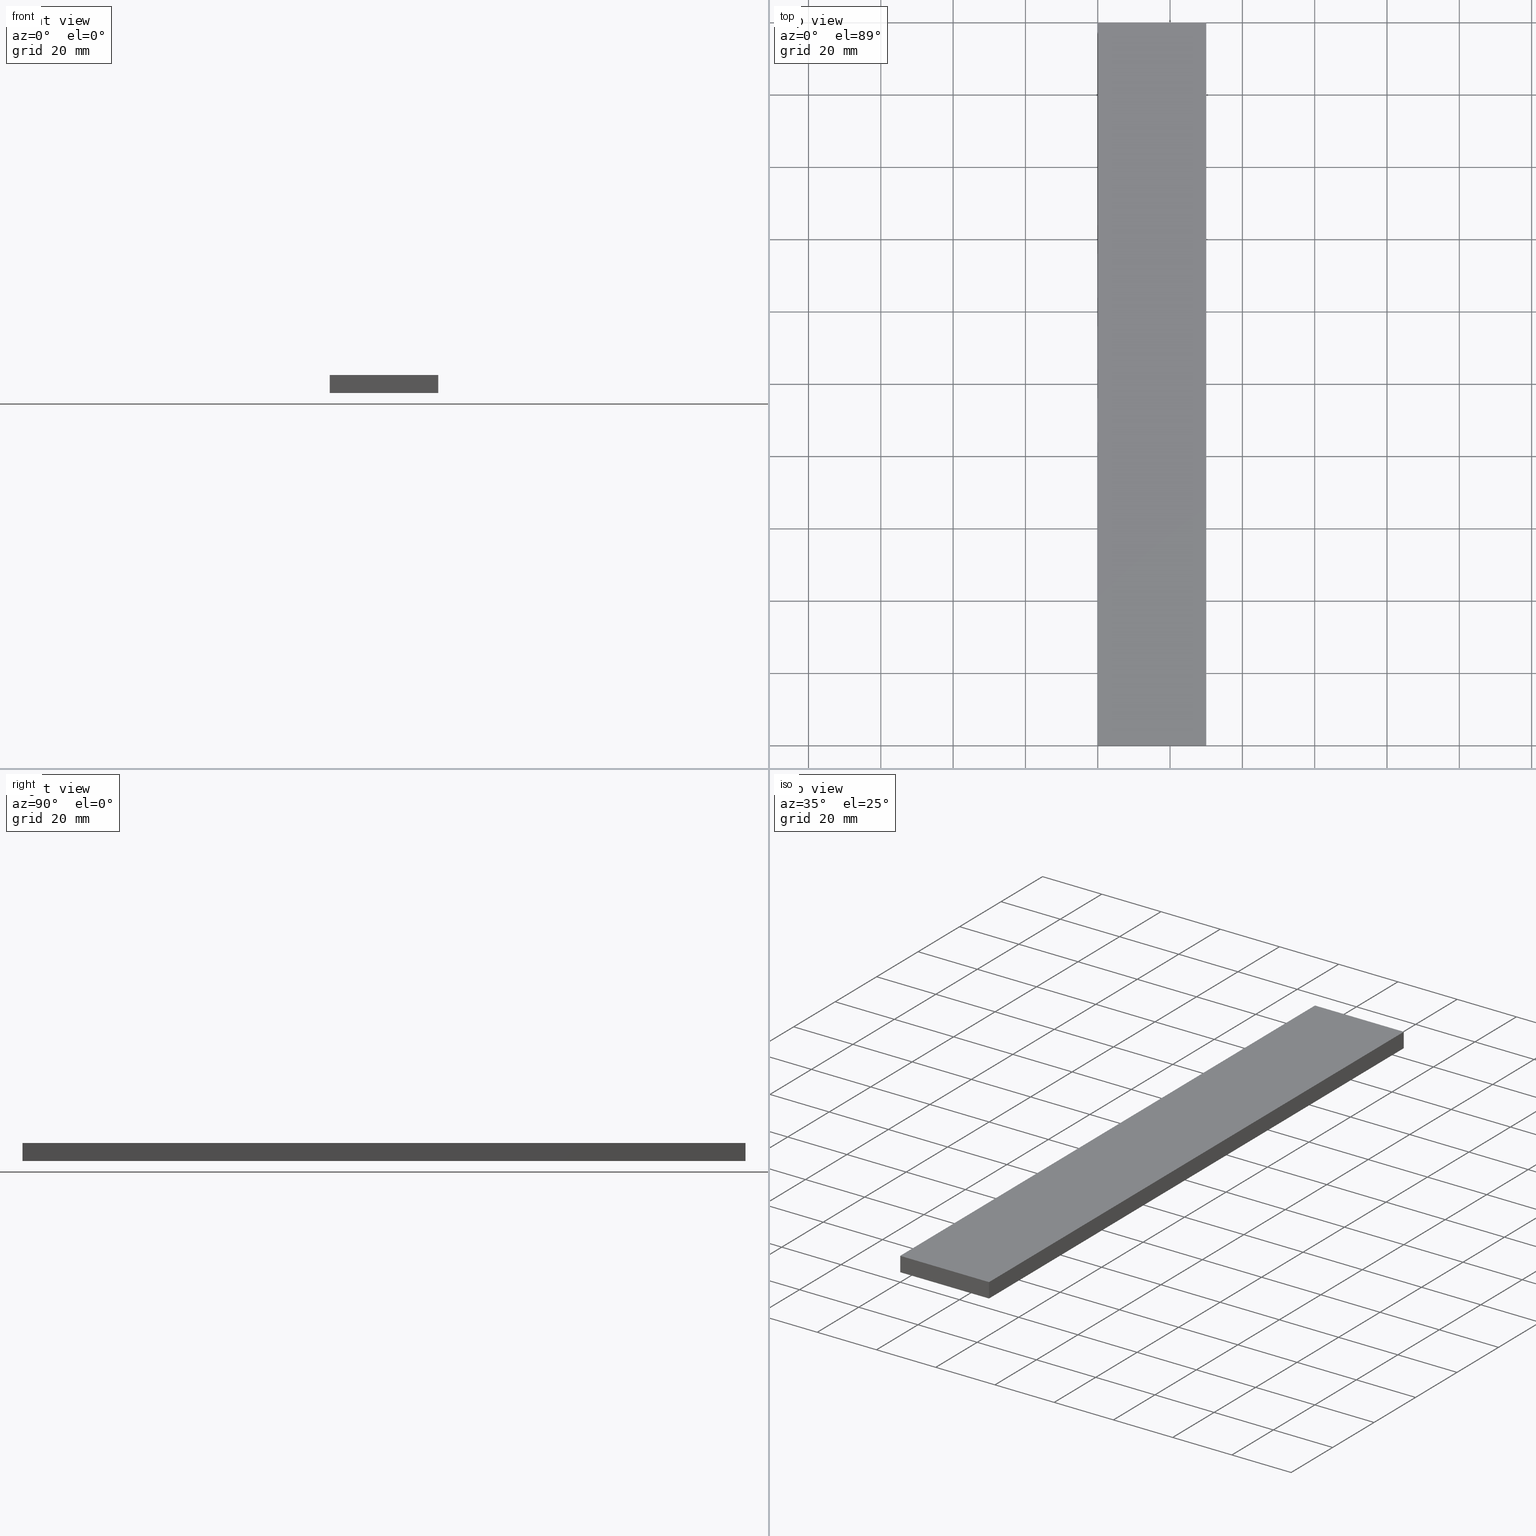
[diagram: canonical four-view strip — front | top / right | iso, engineering-drawing reading convention]
A machine part, canonical four-view strip (front | top / right | iso — engineering-drawing reading convention). The complete STEP part file that produces these views, byte-faithful:
ISO-10303-21;
HEADER;
FILE_DESCRIPTION (( 'STEP AP214' ),
    '1' );
FILE_NAME ('TM_340W_6.STEP',
    '2016-05-09T07:26:00',
    ( '' ),
    ( '' ),
    'SwSTEP 2.0',
    'SolidWorks 2015',
    '' );
FILE_SCHEMA (( 'AUTOMOTIVE_DESIGN' ));
ENDSEC;

DATA;
#1 = ORIENTED_EDGE ( 'NONE', *, *, #225, .F. ) ;
#2 = PRODUCT_DEFINITION_CONTEXT ( 'detailed design', #185, 'design' ) ;
#3 = STYLED_ITEM ( 'NONE', ( #115 ), #7 ) ;
#4 = PRODUCT_DEFINITION_FORMATION_WITH_SPECIFIED_SOURCE ( 'ANY', '', #224, .NOT_KNOWN. ) ;
#5 = FACE_OUTER_BOUND ( 'NONE', #52, .T. ) ;
#6 = PLANE ( 'NONE',  #42 ) ;
#7 = MANIFOLD_SOLID_BREP ( '���߰�1', #59 ) ;
#8 =( NAMED_UNIT ( * ) PLANE_ANGLE_UNIT ( ) SI_UNIT ( $, .RADIAN. ) );
#9 = APPLICATION_PROTOCOL_DEFINITION ( 'draft international standard', 'automotive_design', 1998, #185 ) ;
#10 =( LENGTH_UNIT ( ) NAMED_UNIT ( * ) SI_UNIT ( .MILLI., .METRE. ) );
#11 = ADVANCED_FACE ( 'NONE', ( #5 ), #6, .T. ) ;
#12 = DIRECTION ( 'NONE',  ( 0.0000000000000000000, 0.0000000000000000000, 1.000000000000000000 ) ) ;
#13 = FACE_OUTER_BOUND ( 'NONE', #220, .T. ) ;
#14 = AXIS2_PLACEMENT_3D ( 'NONE', #117, #85, #80 ) ;
#15 = PLANE ( 'NONE',  #78 ) ;
#16 = CONTEXT_DEPENDENT_SHAPE_REPRESENTATION ( #134, #146 ) ;
#17 = CARTESIAN_POINT ( 'NONE',  ( 30.00000000000000000, 0.0000000000000000000, 5.000000000000000000 ) ) ;
#18 = APPLICATION_CONTEXT ( 'automotive_design' ) ;
#19 = LINE ( 'NONE', #206, #138 ) ;
#20 = LINE ( 'NONE', #64, #200 ) ;
#21 = ORIENTED_EDGE ( 'NONE', *, *, #230, .F. ) ;
#22 = CARTESIAN_POINT ( 'NONE',  ( 0.0000000000000000000, 1000.000000000000000, 5.000000000000000000 ) ) ;
#23 = ADVANCED_FACE ( 'NONE', ( #98 ), #204, .F. ) ;
#24 = PRODUCT_DEFINITION ( 'UNKNOWN', '', #4, #44 ) ;
#25 = SURFACE_STYLE_FILL_AREA ( #143 ) ;
#26 = DIRECTION ( 'NONE',  ( 0.0000000000000000000, -1.000000000000000000, 0.0000000000000000000 ) ) ;
#27 = ORIENTED_EDGE ( 'NONE', *, *, #127, .F. ) ;
#28 =( NAMED_UNIT ( * ) SI_UNIT ( $, .STERADIAN. ) SOLID_ANGLE_UNIT ( ) );
#29 = PRODUCT_RELATED_PRODUCT_CATEGORY ( 'part', '', ( #224 ) ) ;
#30 = ORIENTED_EDGE ( 'NONE', *, *, #99, .T. ) ;
#31 = AXIS2_PLACEMENT_3D ( 'NONE', #114, #83, #232 ) ;
#32 = ORIENTED_EDGE ( 'NONE', *, *, #155, .F. ) ;
#33 = VERTEX_POINT ( 'NONE', #50 ) ;
#34 = ORIENTED_EDGE ( 'NONE', *, *, #176, .F. ) ;
#35 = FILL_AREA_STYLE ('',( #96 ) ) ;
#36 = VERTEX_POINT ( 'NONE', #60 ) ;
#37 = PLANE ( 'NONE',  #103 ) ;
#38 = ORIENTED_EDGE ( 'NONE', *, *, #155, .T. ) ;
#39 = AXIS2_PLACEMENT_3D ( 'NONE', #75, #151, #191 ) ;
#40 =( LENGTH_UNIT ( ) NAMED_UNIT ( * ) SI_UNIT ( .MILLI., .METRE. ) );
#41 = PRODUCT_RELATED_PRODUCT_CATEGORY ( 'part', '', ( #201 ) ) ;
#42 = AXIS2_PLACEMENT_3D ( 'NONE', #107, #160, #68 ) ;
#43 = CARTESIAN_POINT ( 'NONE',  ( 0.0000000000000000000, 200.0000000000000000, 5.000000000000000000 ) ) ;
#44 = PRODUCT_DEFINITION_CONTEXT ( 'detailed design', #198, 'design' ) ;
#45 = CARTESIAN_POINT ( 'NONE',  ( 0.0000000000000000000, 0.0000000000000000000, 0.0000000000000000000 ) ) ;
#46 = ADVANCED_FACE ( 'NONE', ( #228 ), #15, .F. ) ;
#47 = DIRECTION ( 'NONE',  ( 0.0000000000000000000, 0.0000000000000000000, 1.000000000000000000 ) ) ;
#48 = ORIENTED_EDGE ( 'NONE', *, *, #168, .F. ) ;
#49 = DIRECTION ( 'NONE',  ( 1.000000000000000000, 0.0000000000000000000, 0.0000000000000000000 ) ) ;
#50 = CARTESIAN_POINT ( 'NONE',  ( 30.00000000000000000, 200.0000000000000000, 0.0000000000000000000 ) ) ;
#51 = EDGE_CURVE ( 'NONE', #110, #36, #94, .T. ) ;
#52 = EDGE_LOOP ( 'NONE', ( #30, #74, #147, #56 ) ) ;
#53 = EDGE_CURVE ( 'NONE', #231, #110, #149, .T. ) ;
#54 = LINE ( 'NONE', #17, #166 ) ;
#55 = PLANE ( 'NONE',  #216 ) ;
#56 = ORIENTED_EDGE ( 'NONE', *, *, #230, .T. ) ;
#57 = DIRECTION ( 'NONE',  ( -1.000000000000000000, 0.0000000000000000000, 0.0000000000000000000 ) ) ;
#58 = SURFACE_STYLE_FILL_AREA ( #35 ) ;
#59 = CLOSED_SHELL ( 'NONE', ( #23, #169, #46, #199, #11, #104 ) ) ;
#60 = CARTESIAN_POINT ( 'NONE',  ( 30.00000000000000000, 0.0000000000000000000, 5.000000000000000000 ) ) ;
#61 = ORIENTED_EDGE ( 'NONE', *, *, #116, .T. ) ;
#62 = CARTESIAN_POINT ( 'NONE',  ( 0.0000000000000000000, 0.0000000000000000000, 5.000000000000000000 ) ) ;
#63 = AXIS2_PLACEMENT_3D ( 'NONE', #79, #47, #91 ) ;
#64 = CARTESIAN_POINT ( 'NONE',  ( 30.00000000000000000, 0.0000000000000000000, 0.0000000000000000000 ) ) ;
#65 = PRODUCT_DEFINITION_SHAPE ( 'NONE', 'NONE',  #24 ) ;
#66 = CARTESIAN_POINT ( 'NONE',  ( 0.0000000000000000000, 0.0000000000000000000, 0.0000000000000000000 ) ) ;
#67 = LINE ( 'NONE', #62, #209 ) ;
#68 = DIRECTION ( 'NONE',  ( 1.000000000000000000, 0.0000000000000000000, 0.0000000000000000000 ) ) ;
#69 = VERTEX_POINT ( 'NONE', #105 ) ;
#70 = ORIENTED_EDGE ( 'NONE', *, *, #116, .F. ) ;
#71 = VECTOR ( 'NONE', #222, 1000.000000000000000 ) ;
#72 = UNCERTAINTY_MEASURE_WITH_UNIT (LENGTH_MEASURE( 1.000000000000000100E-005 ), #10, 'distance_accuracy_value', 'NONE');
#73 = ORIENTED_EDGE ( 'NONE', *, *, #99, .F. ) ;
#74 = ORIENTED_EDGE ( 'NONE', *, *, #53, .T. ) ;
#75 = CARTESIAN_POINT ( 'NONE',  ( 0.0000000000000000000, 1000.000000000000000, 0.0000000000000000000 ) ) ;
#76 = VECTOR ( 'NONE', #215, 1000.000000000000000 ) ;
#77 = ORIENTED_EDGE ( 'NONE', *, *, #51, .F. ) ;
#78 = AXIS2_PLACEMENT_3D ( 'NONE', #178, #238, #12 ) ;
#79 = CARTESIAN_POINT ( 'NONE',  ( 0.0000000000000000000, 0.0000000000000000000, 0.0000000000000000000 ) ) ;
#80 = DIRECTION ( 'NONE',  ( 1.000000000000000000, 0.0000000000000000000, 0.0000000000000000000 ) ) ;
#81 = SHAPE_REPRESENTATION_RELATIONSHIP ( 'NONE' , 'NONE' ,  #187, #170 ) ;
#82 = SURFACE_STYLE_USAGE ( .BOTH. , #167 ) ;
#83 = DIRECTION ( 'NONE',  ( 0.0000000000000000000, 0.0000000000000000000, 1.000000000000000000 ) ) ;
#84 = DIRECTION ( 'NONE',  ( 1.000000000000000000, 0.0000000000000000000, 0.0000000000000000000 ) ) ;
#85 = DIRECTION ( 'NONE',  ( 0.0000000000000000000, 0.0000000000000000000, 1.000000000000000000 ) ) ;
#86 = VERTEX_POINT ( 'NONE', #126 ) ;
#87 = DIRECTION ( 'NONE',  ( 0.0000000000000000000, -1.000000000000000000, 0.0000000000000000000 ) ) ;
#88 =( NAMED_UNIT ( * ) SI_UNIT ( $, .STERADIAN. ) SOLID_ANGLE_UNIT ( ) );
#89 = UNCERTAINTY_MEASURE_WITH_UNIT (LENGTH_MEASURE( 1.000000000000000100E-005 ), #183, 'distance_accuracy_value', 'NONE');
#90 = DIRECTION ( 'NONE',  ( 0.0000000000000000000, 0.0000000000000000000, 1.000000000000000000 ) ) ;
#91 = DIRECTION ( 'NONE',  ( 1.000000000000000000, 0.0000000000000000000, 0.0000000000000000000 ) ) ;
#92 = CARTESIAN_POINT ( 'NONE',  ( 30.00000000000000000, 1000.000000000000000, 0.0000000000000000000 ) ) ;
#93 = DIRECTION ( 'NONE',  ( -0.0000000000000000000, 1.000000000000000000, 0.0000000000000000000 ) ) ;
#94 = LINE ( 'NONE', #140, #165 ) ;
#95 = ORIENTED_EDGE ( 'NONE', *, *, #128, .F. ) ;
#96 = FILL_AREA_STYLE_COLOUR ( '', #233 ) ;
#97 = SHAPE_DEFINITION_REPRESENTATION ( #203, #187 ) ;
#98 = FACE_OUTER_BOUND ( 'NONE', #172, .T. ) ;
#99 = EDGE_CURVE ( 'NONE', #86, #231, #19, .T. ) ;
#100 = CARTESIAN_POINT ( 'NONE',  ( 30.00000000000000000, 200.0000000000000000, 0.0000000000000000000 ) ) ;
#101 = APPLICATION_PROTOCOL_DEFINITION ( 'draft international standard', 'automotive_design', 1998, #236 ) ;
#102 = FACE_OUTER_BOUND ( 'NONE', #113, .T. ) ;
#103 = AXIS2_PLACEMENT_3D ( 'NONE', #45, #93, #49 ) ;
#104 = ADVANCED_FACE ( 'NONE', ( #123 ), #37, .F. ) ;
#105 = CARTESIAN_POINT ( 'NONE',  ( 30.00000000000000000, 0.0000000000000000000, 0.0000000000000000000 ) ) ;
#106 =( NAMED_UNIT ( * ) PLANE_ANGLE_UNIT ( ) SI_UNIT ( $, .RADIAN. ) );
#107 = CARTESIAN_POINT ( 'NONE',  ( 0.0000000000000000000, 200.0000000000000000, 0.0000000000000000000 ) ) ;
#108 = VECTOR ( 'NONE', #90, 1000.000000000000000 ) ;
#109 = LINE ( 'NONE', #189, #108 ) ;
#110 = VERTEX_POINT ( 'NONE', #171 ) ;
#111 = MECHANICAL_DESIGN_GEOMETRIC_PRESENTATION_REPRESENTATION (  '', ( #234 ), #237 ) ;
#112 = VERTEX_POINT ( 'NONE', #131 ) ;
#113 = EDGE_LOOP ( 'NONE', ( #136, #32, #21, #130 ) ) ;
#114 = CARTESIAN_POINT ( 'NONE',  ( 30.00000000000000000, 1000.000000000000000, 0.0000000000000000000 ) ) ;
#115 = PRESENTATION_STYLE_ASSIGNMENT (( #133 ) ) ;
#116 = EDGE_CURVE ( 'NONE', #112, #175, #109, .T. ) ;
#117 = CARTESIAN_POINT ( 'NONE',  ( 0.0000000000000000000, 0.0000000000000000000, 0.0000000000000000000 ) ) ;
#118 = DIRECTION ( 'NONE',  ( -1.000000000000000000, 0.0000000000000000000, 0.0000000000000000000 ) ) ;
#119 =( NAMED_UNIT ( * ) PLANE_ANGLE_UNIT ( ) SI_UNIT ( $, .RADIAN. ) );
#120 = ORIENTED_EDGE ( 'NONE', *, *, #51, .T. ) ;
#121 = DIRECTION ( 'NONE',  ( 0.0000000000000000000, 0.0000000000000000000, -1.000000000000000000 ) ) ;
#122 = APPLICATION_PROTOCOL_DEFINITION ( 'draft international standard', 'automotive_design', 1998, #198 ) ;
#123 = FACE_OUTER_BOUND ( 'NONE', #212, .T. ) ;
#124 = CARTESIAN_POINT ( 'NONE',  ( 0.0000000000000000000, 200.0000000000000000, 5.000000000000000000 ) ) ;
#125 = CARTESIAN_POINT ( 'NONE',  ( 0.0000000000000000000, 1000.000000000000000, 5.000000000000000000 ) ) ;
#126 = CARTESIAN_POINT ( 'NONE',  ( 0.0000000000000000000, 200.0000000000000000, 0.0000000000000000000 ) ) ;
#127 = EDGE_CURVE ( 'NONE', #36, #69, #54, .T. ) ;
#128 = EDGE_CURVE ( 'NONE', #231, #175, #186, .T. ) ;
#129 =( GEOMETRIC_REPRESENTATION_CONTEXT ( 3 ) GLOBAL_UNCERTAINTY_ASSIGNED_CONTEXT ( ( #72 ) ) GLOBAL_UNIT_ASSIGNED_CONTEXT ( ( #10, #119, #205 ) ) REPRESENTATION_CONTEXT ( 'NONE', 'WORKASPACE' ) );
#130 = ORIENTED_EDGE ( 'NONE', *, *, #168, .T. ) ;
#131 = CARTESIAN_POINT ( 'NONE',  ( 0.0000000000000000000, 0.0000000000000000000, 0.0000000000000000000 ) ) ;
#132 = COLOUR_RGB ( '',0.7921568627450980000, 0.8196078431372548800, 0.9333333333333333500 ) ;
#133 = SURFACE_STYLE_USAGE ( .BOTH. , #150 ) ;
#134 =( REPRESENTATION_RELATIONSHIP ('NONE','NONE', #181, #187 ) REPRESENTATION_RELATIONSHIP_WITH_TRANSFORMATION ( #173 )SHAPE_REPRESENTATION_RELATIONSHIP( ) );
#135 = VECTOR ( 'NONE', #162, 1000.000000000000000 ) ;
#136 = ORIENTED_EDGE ( 'NONE', *, *, #194, .T. ) ;
#137 = CARTESIAN_POINT ( 'NONE',  ( 30.00000000000000000, 200.0000000000000000, 5.000000000000000000 ) ) ;
#138 = VECTOR ( 'NONE', #163, 1000.000000000000000 ) ;
#139 = DIRECTION ( 'NONE',  ( 0.0000000000000000000, 0.0000000000000000000, -1.000000000000000000 ) ) ;
#140 = CARTESIAN_POINT ( 'NONE',  ( 30.00000000000000000, 1000.000000000000000, 5.000000000000000000 ) ) ;
#141 = DIRECTION ( 'NONE',  ( 0.0000000000000000000, -1.000000000000000000, 0.0000000000000000000 ) ) ;
#142 = VECTOR ( 'NONE', #87, 1000.000000000000000 ) ;
#143 = FILL_AREA_STYLE ('',( #153 ) ) ;
#144 = DIRECTION ( 'NONE',  ( 1.000000000000000000, 0.0000000000000000000, 0.0000000000000000000 ) ) ;
#145 = PRESENTATION_STYLE_ASSIGNMENT (( #82 ) ) ;
#146 = PRODUCT_DEFINITION_SHAPE ( 'NONE', 'NONE',  #239 ) ;
#147 = ORIENTED_EDGE ( 'NONE', *, *, #225, .T. ) ;
#148 = LINE ( 'NONE', #137, #71 ) ;
#149 = LINE ( 'NONE', #124, #161 ) ;
#150 = SURFACE_SIDE_STYLE ('',( #25 ) ) ;
#151 = DIRECTION ( 'NONE',  ( 1.000000000000000000, 0.0000000000000000000, 0.0000000000000000000 ) ) ;
#152 = LINE ( 'NONE', #100, #76 ) ;
#153 = FILL_AREA_STYLE_COLOUR ( '', #132 ) ;
#154 = ORIENTED_EDGE ( 'NONE', *, *, #128, .T. ) ;
#155 = EDGE_CURVE ( 'NONE', #86, #112, #193, .T. ) ;
#156 = PRODUCT_DEFINITION ( 'UNKNOWN', '', #219, #2 ) ;
#157 = APPLICATION_PROTOCOL_DEFINITION ( 'draft international standard', 'automotive_design', 1998, #18 ) ;
#158 = DIRECTION ( 'NONE',  ( 0.0000000000000000000, 0.0000000000000000000, 1.000000000000000000 ) ) ;
#159 = DIRECTION ( 'NONE',  ( 1.000000000000000000, 0.0000000000000000000, 0.0000000000000000000 ) ) ;
#160 = DIRECTION ( 'NONE',  ( -0.0000000000000000000, 1.000000000000000000, 0.0000000000000000000 ) ) ;
#161 = VECTOR ( 'NONE', #182, 1000.000000000000000 ) ;
#162 = DIRECTION ( 'NONE',  ( 0.0000000000000000000, -1.000000000000000000, 0.0000000000000000000 ) ) ;
#163 = DIRECTION ( 'NONE',  ( 0.0000000000000000000, 0.0000000000000000000, 1.000000000000000000 ) ) ;
#164 =( NAMED_UNIT ( * ) PLANE_ANGLE_UNIT ( ) SI_UNIT ( $, .RADIAN. ) );
#165 = VECTOR ( 'NONE', #26, 1000.000000000000000 ) ;
#166 = VECTOR ( 'NONE', #139, 1000.000000000000000 ) ;
#167 = SURFACE_SIDE_STYLE ('',( #58 ) ) ;
#168 = EDGE_CURVE ( 'NONE', #33, #69, #192, .T. ) ;
#169 = ADVANCED_FACE ( 'NONE', ( #13 ), #55, .F. ) ;
#170 = ADVANCED_BREP_SHAPE_REPRESENTATION ( '', ( #7, #63 ), #196 ) ;
#171 = CARTESIAN_POINT ( 'NONE',  ( 30.00000000000000000, 200.0000000000000000, 5.000000000000000000 ) ) ;
#172 = EDGE_LOOP ( 'NONE', ( #61, #95, #73, #38 ) ) ;
#173 = ITEM_DEFINED_TRANSFORMATION ( 'NONE', 'NONE', #14,  #63 ) ;
#174 = AXIS2_PLACEMENT_3D ( 'NONE', #66, #158, #159 ) ;
#175 = VERTEX_POINT ( 'NONE', #235 ) ;
#176 = EDGE_CURVE ( 'NONE', #175, #36, #67, .T. ) ;
#177 = SHAPE_DEFINITION_REPRESENTATION ( #65, #181 ) ;
#178 = CARTESIAN_POINT ( 'NONE',  ( 30.00000000000000000, 1000.000000000000000, 5.000000000000000000 ) ) ;
#179 = DIRECTION ( 'NONE',  ( 0.0000000000000000000, 0.0000000000000000000, 1.000000000000000000 ) ) ;
#180 = VECTOR ( 'NONE', #141, 1000.000000000000000 ) ;
#181 = SHAPE_REPRESENTATION ( 'TM_340W_6', ( #211, #14 ), #129 ) ;
#182 = DIRECTION ( 'NONE',  ( 1.000000000000000000, 0.0000000000000000000, 0.0000000000000000000 ) ) ;
#183 =( LENGTH_UNIT ( ) NAMED_UNIT ( * ) SI_UNIT ( .MILLI., .METRE. ) );
#184 = ORIENTED_EDGE ( 'NONE', *, *, #53, .F. ) ;
#185 = APPLICATION_CONTEXT ( 'automotive_design' ) ;
#186 = LINE ( 'NONE', #125, #180 ) ;
#187 = SHAPE_REPRESENTATION ( 'rubber foam', ( #63 ), #196 ) ;
#188 = MECHANICAL_DESIGN_GEOMETRIC_PRESENTATION_REPRESENTATION (  '', ( #3 ), #227 ) ;
#189 = CARTESIAN_POINT ( 'NONE',  ( 0.0000000000000000000, 0.0000000000000000000, 0.0000000000000000000 ) ) ;
#190 = ORIENTED_EDGE ( 'NONE', *, *, #176, .T. ) ;
#191 = DIRECTION ( 'NONE',  ( 0.0000000000000000000, 0.0000000000000000000, -1.000000000000000000 ) ) ;
#192 = LINE ( 'NONE', #92, #135 ) ;
#193 = LINE ( 'NONE', #223, #142 ) ;
#194 = EDGE_CURVE ( 'NONE', #69, #112, #20, .T. ) ;
#195 = PRODUCT_CONTEXT ( 'NONE', #18, 'mechanical' ) ;
#196 =( GEOMETRIC_REPRESENTATION_CONTEXT ( 3 ) GLOBAL_UNCERTAINTY_ASSIGNED_CONTEXT ( ( #213 ) ) GLOBAL_UNIT_ASSIGNED_CONTEXT ( ( #40, #164, #88 ) ) REPRESENTATION_CONTEXT ( 'NONE', 'WORKASPACE' ) );
#197 = ORIENTED_EDGE ( 'NONE', *, *, #127, .T. ) ;
#198 = APPLICATION_CONTEXT ( 'automotive_design' ) ;
#199 = ADVANCED_FACE ( 'NONE', ( #102 ), #208, .F. ) ;
#200 = VECTOR ( 'NONE', #57, 1000.000000000000000 ) ;
#201 = PRODUCT ( 'rubber foam', 'rubber foam', '', ( #214 ) ) ;
#202 = CARTESIAN_POINT ( 'NONE',  ( 0.0000000000000000000, 0.0000000000000000000, 0.0000000000000000000 ) ) ;
#203 = PRODUCT_DEFINITION_SHAPE ( 'NONE', 'NONE',  #156 ) ;
#204 = PLANE ( 'NONE',  #39 ) ;
#205 =( NAMED_UNIT ( * ) SI_UNIT ( $, .STERADIAN. ) SOLID_ANGLE_UNIT ( ) );
#206 = CARTESIAN_POINT ( 'NONE',  ( 0.0000000000000000000, 200.0000000000000000, 0.0000000000000000000 ) ) ;
#207 = UNCERTAINTY_MEASURE_WITH_UNIT (LENGTH_MEASURE( 1.000000000000000100E-005 ), #226, 'distance_accuracy_value', 'NONE');
#208 = PLANE ( 'NONE',  #31 ) ;
#209 = VECTOR ( 'NONE', #144, 1000.000000000000000 ) ;
#210 =( NAMED_UNIT ( * ) SI_UNIT ( $, .STERADIAN. ) SOLID_ANGLE_UNIT ( ) );
#211 = AXIS2_PLACEMENT_3D ( 'NONE', #202, #179, #84 ) ;
#212 = EDGE_LOOP ( 'NONE', ( #70, #229, #27, #34 ) ) ;
#213 = UNCERTAINTY_MEASURE_WITH_UNIT (LENGTH_MEASURE( 1.000000000000000100E-005 ), #40, 'distance_accuracy_value', 'NONE');
#214 = PRODUCT_CONTEXT ( 'NONE', #236, 'mechanical' ) ;
#215 = DIRECTION ( 'NONE',  ( -1.000000000000000000, 0.0000000000000000000, 0.0000000000000000000 ) ) ;
#216 = AXIS2_PLACEMENT_3D ( 'NONE', #22, #121, #118 ) ;
#217 = PRESENTATION_LAYER_ASSIGNMENT (  '', '', ( #234 ) ) ;
#218 = PRESENTATION_LAYER_ASSIGNMENT (  '', '', ( #3 ) ) ;
#219 = PRODUCT_DEFINITION_FORMATION_WITH_SPECIFIED_SOURCE ( 'ANY', '', #201, .NOT_KNOWN. ) ;
#220 = EDGE_LOOP ( 'NONE', ( #190, #77, #184, #154 ) ) ;
#221 = EDGE_LOOP ( 'NONE', ( #197, #48, #1, #120 ) ) ;
#222 = DIRECTION ( 'NONE',  ( 0.0000000000000000000, 0.0000000000000000000, -1.000000000000000000 ) ) ;
#223 = CARTESIAN_POINT ( 'NONE',  ( 0.0000000000000000000, 1000.000000000000000, 0.0000000000000000000 ) ) ;
#224 = PRODUCT ( 'TM_340W_6', 'TM_340W_6', '', ( #195 ) ) ;
#225 = EDGE_CURVE ( 'NONE', #110, #33, #148, .T. ) ;
#226 =( LENGTH_UNIT ( ) NAMED_UNIT ( * ) SI_UNIT ( .MILLI., .METRE. ) );
#227 =( GEOMETRIC_REPRESENTATION_CONTEXT ( 3 ) GLOBAL_UNCERTAINTY_ASSIGNED_CONTEXT ( ( #207 ) ) GLOBAL_UNIT_ASSIGNED_CONTEXT ( ( #226, #8, #210 ) ) REPRESENTATION_CONTEXT ( 'NONE', 'WORKASPACE' ) );
#228 = FACE_OUTER_BOUND ( 'NONE', #221, .T. ) ;
#229 = ORIENTED_EDGE ( 'NONE', *, *, #194, .F. ) ;
#230 = EDGE_CURVE ( 'NONE', #33, #86, #152, .T. ) ;
#231 = VERTEX_POINT ( 'NONE', #43 ) ;
#232 = DIRECTION ( 'NONE',  ( 1.000000000000000000, 0.0000000000000000000, 0.0000000000000000000 ) ) ;
#233 = COLOUR_RGB ( '',0.7921568627450980000, 0.8196078431372548800, 0.9333333333333333500 ) ;
#234 = STYLED_ITEM ( 'NONE', ( #145 ), #170 ) ;
#235 = CARTESIAN_POINT ( 'NONE',  ( 0.0000000000000000000, 0.0000000000000000000, 5.000000000000000000 ) ) ;
#236 = APPLICATION_CONTEXT ( 'automotive_design' ) ;
#237 =( GEOMETRIC_REPRESENTATION_CONTEXT ( 3 ) GLOBAL_UNCERTAINTY_ASSIGNED_CONTEXT ( ( #89 ) ) GLOBAL_UNIT_ASSIGNED_CONTEXT ( ( #183, #106, #28 ) ) REPRESENTATION_CONTEXT ( 'NONE', 'WORKASPACE' ) );
#238 = DIRECTION ( 'NONE',  ( -1.000000000000000000, 0.0000000000000000000, 0.0000000000000000000 ) ) ;
#239 = NEXT_ASSEMBLY_USAGE_OCCURRENCE ( 'NAUO1', ' ', ' ', #24, #156, $ ) ;
ENDSEC;
END-ISO-10303-21;
